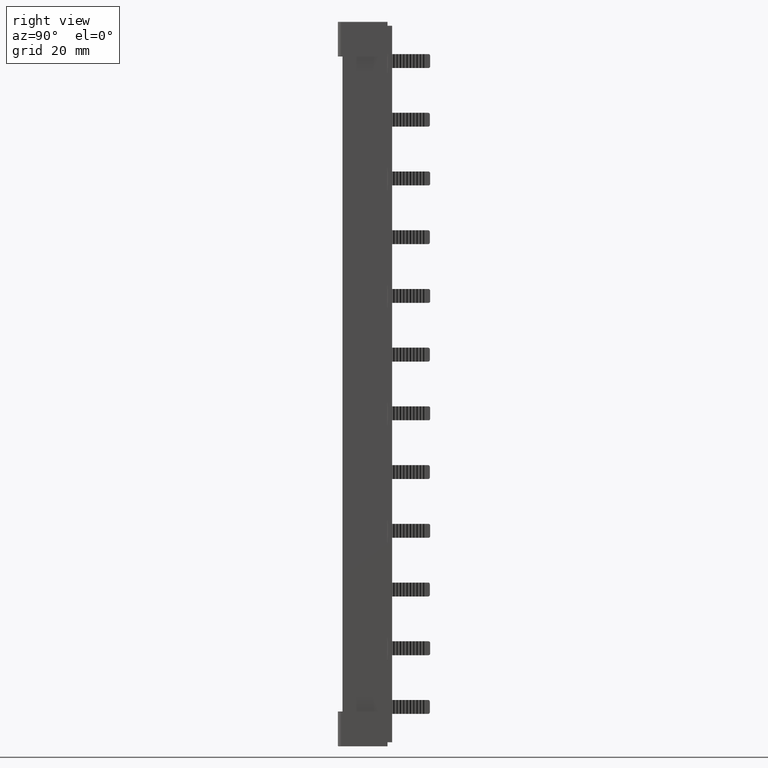
[diagram: clean part render]
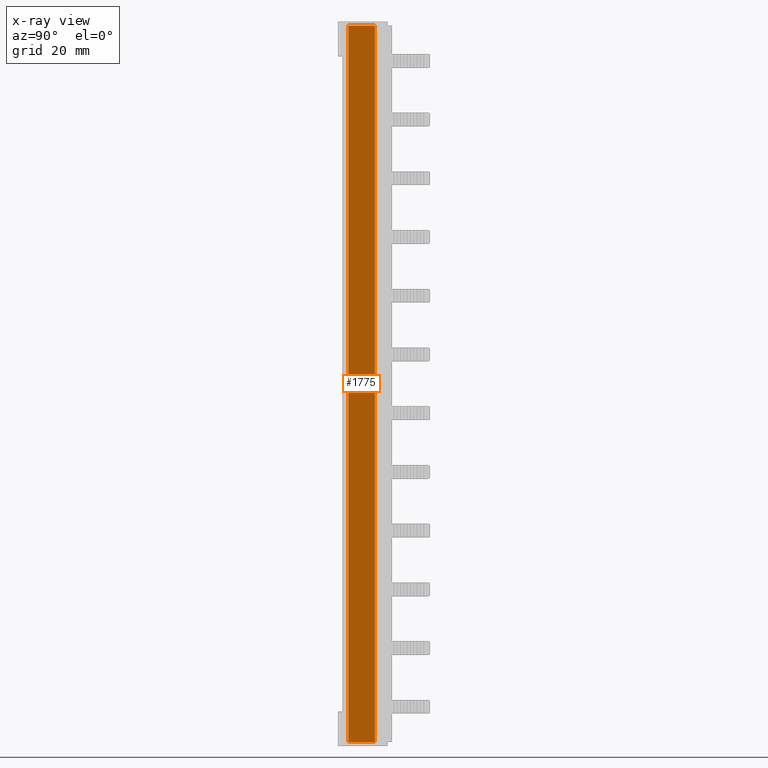
[diagram: x-ray — body ghosted, one internal face saturated and labeled with its STEP entity id]
A machine part, right view, then the same camera in x-ray: the body is ghosted and one INTERNAL B-rep face — a face not visible from any outside direction — is saturated and labeled: STEP entity #1775.
In plain terms, the highlighted planar face has unit normal (-1, 0, 0).
Its self-contained STEP definition (entity closure, byte-faithful):
#1775 = ADVANCED_FACE ( 'NONE', ( #14685 ), #14677, .T. ) ;
#2255 = EDGE_CURVE ( 'NONE', #17651, #17653, #3100, .T. ) ;
#2260 = EDGE_CURVE ( 'NONE', #17539, #17653, #3111, .T. ) ;
#3089 = CARTESIAN_POINT ( 'NONE',  ( 5.599999999999383200, 1.799999999999940500, 219.0000000000000000 ) ) ;
#3099 = CARTESIAN_POINT ( 'NONE',  ( 5.599999999999383200, 0.4000000000001606700, 1.200000000003876600 ) ) ;
#3100 = LINE ( 'NONE', #3089, #3523 ) ;
#3107 = DIRECTION ( 'NONE',  ( -0.0000000000000000000, 0.0000000000000000000, -1.000000000000000000 ) ) ;
#3110 = DIRECTION ( 'NONE',  ( -0.0000000000000000000, -1.000000000000000000, -0.0000000000000000000 ) ) ;
#3111 = LINE ( 'NONE', #3099, #3540 ) ;
#3523 = VECTOR ( 'NONE', #3107, 1000.000000000000000 ) ;
#3540 = VECTOR ( 'NONE', #3110, 1000.000000000000000 ) ;
#3747 = VECTOR ( 'NONE', #5426, 1000.000000000000000 ) ;
#3769 = VECTOR ( 'NONE', #5415, 1000.000000000000000 ) ;
#4734 = EDGE_CURVE ( 'NONE', #17651, #17714, #5432, .T. ) ;
#4742 = EDGE_CURVE ( 'NONE', #17539, #17714, #5414, .T. ) ;
#5370 = CARTESIAN_POINT ( 'NONE',  ( 5.599999999999383200, 9.799999999999947400, 219.0000000000000000 ) ) ;
#5371 = CARTESIAN_POINT ( 'NONE',  ( 5.599999999999383200, 0.4000000000001606700, 217.7999999999961200 ) ) ;
#5414 = LINE ( 'NONE', #5370, #3769 ) ;
#5415 = DIRECTION ( 'NONE',  ( -0.0000000000000000000, 0.0000000000000000000, 1.000000000000000000 ) ) ;
#5426 = DIRECTION ( 'NONE',  ( 0.0000000000000000000, 1.000000000000000000, 0.0000000000000000000 ) ) ;
#5432 = LINE ( 'NONE', #5371, #3747 ) ;
#12341 = EDGE_LOOP ( 'NONE', ( #18188, #18167, #18174, #18251 ) ) ;
#14677 = PLANE ( 'NONE',  #19666 ) ;
#14680 = DIRECTION ( 'NONE',  ( -1.000000000000000000, 0.0000000000000000000, 0.0000000000000000000 ) ) ;
#14685 = FACE_OUTER_BOUND ( 'NONE', #12341, .T. ) ;
#14695 = DIRECTION ( 'NONE',  ( 0.0000000000000000000, 0.0000000000000000000, 1.000000000000000000 ) ) ;
#14705 = CARTESIAN_POINT ( 'NONE',  ( 5.599999999999383200, 1.799999999999940500, 219.0000000000000000 ) ) ;
#17539 = VERTEX_POINT ( 'NONE', #20476 ) ;
#17651 = VERTEX_POINT ( 'NONE', #20511 ) ;
#17653 = VERTEX_POINT ( 'NONE', #20551 ) ;
#17714 = VERTEX_POINT ( 'NONE', #20597 ) ;
#18167 = ORIENTED_EDGE ( 'NONE', *, *, #4742, .F. ) ;
#18174 = ORIENTED_EDGE ( 'NONE', *, *, #2260, .T. ) ;
#18188 = ORIENTED_EDGE ( 'NONE', *, *, #4734, .T. ) ;
#18251 = ORIENTED_EDGE ( 'NONE', *, *, #2255, .F. ) ;
#19666 = AXIS2_PLACEMENT_3D ( 'NONE', #14705, #14680, #14695 ) ;
#20476 = CARTESIAN_POINT ( 'NONE',  ( 5.599999999999383200, 9.799999999999947400, 1.200000000003013800 ) ) ;
#20511 = CARTESIAN_POINT ( 'NONE',  ( 5.599999999999383200, 1.799999999999940500, 217.7999999999964600 ) ) ;
#20551 = CARTESIAN_POINT ( 'NONE',  ( 5.599999999999383200, 1.799999999999940500, 1.200000000003154800 ) ) ;
#20597 = CARTESIAN_POINT ( 'NONE',  ( 5.599999999999383200, 9.799999999999947400, 217.7999999999964000 ) ) ;